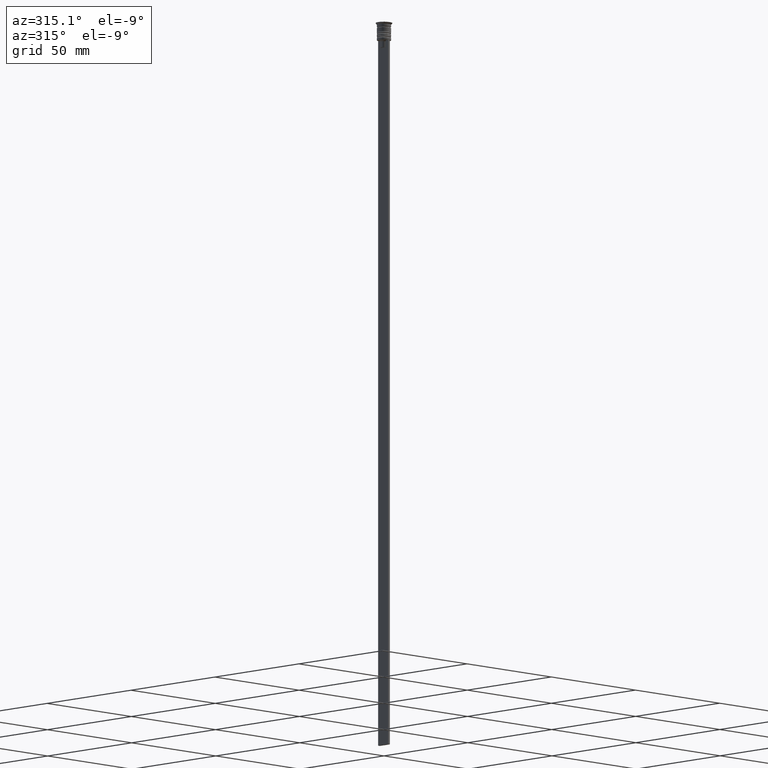
[diagram: clean part render]
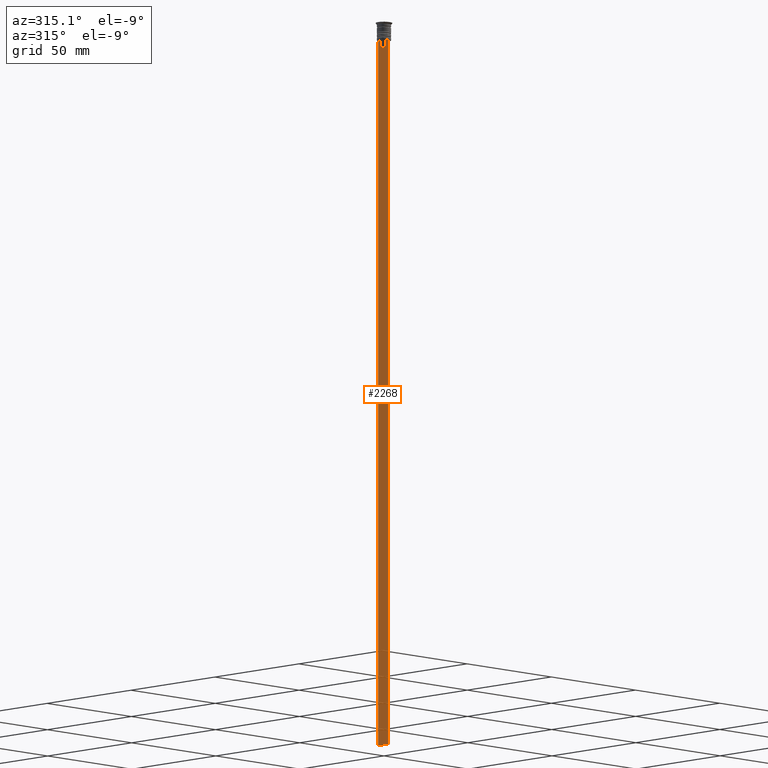
[diagram: same view with one face highlighted and labeled with its STEP entity id]
A machine part, auxiliary view. The second image highlights one B-rep face of the part: STEP entity #2268.
In plain terms, the highlighted planar face has unit normal (-1, 0, 0).
Its self-contained STEP definition (entity closure, byte-faithful):
#36 = EDGE_CURVE ( 'NONE', #466, #317, #1995, .T. ) ;
#69 = DIRECTION ( 'NONE',  ( -1.000000000000000000, 0.000000000000000000, 0.000000000000000000 ) ) ;
#77 = CARTESIAN_POINT ( 'NONE',  ( -0.5000000000000001110, -3.000000000000000000, -7.500000000000000000 ) ) ;
#86 = ORIENTED_EDGE ( 'NONE', *, *, #306, .F. ) ;
#113 = CARTESIAN_POINT ( 'NONE',  ( -0.5000000000000001110, -1.659011726860414093, -7.667884880598472286 ) ) ;
#118 = VERTEX_POINT ( 'NONE', #805 ) ;
#124 = CARTESIAN_POINT ( 'NONE',  ( -0.5000000000000001110, -3.000000000000000000, -1.417237469701779329 ) ) ;
#135 = LINE ( 'NONE', #1795, #1231 ) ;
#151 = DIRECTION ( 'NONE',  ( 0.000000000000000000, 0.000000000000000000, -1.000000000000000000 ) ) ;
#163 = CARTESIAN_POINT ( 'NONE',  ( -0.5000000000000001110, 1.399999999999997691, -10.49999999999999822 ) ) ;
#206 = B_SPLINE_CURVE_WITH_KNOTS ( 'NONE', 3,
 ( #796, #968, #1899, #837 ),
 .UNSPECIFIED., .F., .F.,
 ( 4, 4 ),
 ( 0.003278537493109840491, 0.004003794023484932504 ),
 .UNSPECIFIED. ) ;
#242 = ORIENTED_EDGE ( 'NONE', *, *, #1829, .T. ) ;
#288 = ORIENTED_EDGE ( 'NONE', *, *, #1115, .F. ) ;
#306 = EDGE_CURVE ( 'NONE', #118, #1927, #206, .T. ) ;
#310 = CARTESIAN_POINT ( 'NONE',  ( -0.5000000000000001110, 2.856571371417139904, -7.500000000000000000 ) ) ;
#317 = VERTEX_POINT ( 'NONE', #2234 ) ;
#321 = DIRECTION ( 'NONE',  ( 0.000000000000000000, -1.000000000000000000, 0.000000000000000000 ) ) ;
#341 = CARTESIAN_POINT ( 'NONE',  ( -0.5000000000000001110, 1.307669683062199217, -8.000000000000000000 ) ) ;
#343 = ORIENTED_EDGE ( 'NONE', *, *, #1346, .F. ) ;
#455 = CARTESIAN_POINT ( 'NONE',  ( -0.5000000000000001110, -1.307669683062199217, -8.000000000000000000 ) ) ;
#466 = VERTEX_POINT ( 'NONE', #455 ) ;
#521 = ORIENTED_EDGE ( 'NONE', *, *, #999, .F. ) ;
#566 = AXIS2_PLACEMENT_3D ( 'NONE', #1132, #69, #1847 ) ;
#597 = CARTESIAN_POINT ( 'NONE',  ( -0.5000000000000001110, -1.307669683062199217, -10.49999999999999822 ) ) ;
#612 = CARTESIAN_POINT ( 'NONE',  ( -0.5000000000000001110, -1.833030277982335532, -7.500000000000000000 ) ) ;
#613 = CARTESIAN_POINT ( 'NONE',  ( -0.5000000000000001110, -3.000000000000000000, -7.500000000000000000 ) ) ;
#618 = EDGE_CURVE ( 'NONE', #1350, #1094, #1742, .T. ) ;
#619 = ORIENTED_EDGE ( 'NONE', *, *, #1682, .F. ) ;
#621 = ORIENTED_EDGE ( 'NONE', *, *, #653, .F. ) ;
#653 = EDGE_CURVE ( 'NONE', #694, #466, #135, .T. ) ;
#680 = CARTESIAN_POINT ( 'NONE',  ( -0.5000000000000001110, -3.000000000000000000, -307.5000000000000000 ) ) ;
#694 = VERTEX_POINT ( 'NONE', #597 ) ;
#787 = LINE ( 'NONE', #77, #1948 ) ;
#796 = CARTESIAN_POINT ( 'NONE',  ( -0.5000000000000001110, 1.833030277982335532, -7.500000000000000000 ) ) ;
#805 = CARTESIAN_POINT ( 'NONE',  ( -0.5000000000000001110, 1.833030277982335532, -7.500000000000000000 ) ) ;
#837 = CARTESIAN_POINT ( 'NONE',  ( -0.5000000000000001110, 1.307669683062199217, -8.000000000000000000 ) ) ;
#846 = DIRECTION ( 'NONE',  ( -0.000000000000000000, -0.000000000000000000, 1.000000000000000000 ) ) ;
#968 = CARTESIAN_POINT ( 'NONE',  ( -0.5000000000000001110, 1.659046061654642523, -7.667851756010361619 ) ) ;
#999 = EDGE_CURVE ( 'NONE', #1094, #1281, #1969, .T. ) ;
#1020 = VERTEX_POINT ( 'NONE', #1772 ) ;
#1031 = ORIENTED_EDGE ( 'NONE', *, *, #36, .F. ) ;
#1035 = ORIENTED_EDGE ( 'NONE', *, *, #2073, .F. ) ;
#1049 = EDGE_CURVE ( 'NONE', #1927, #1051, #1423, .T. ) ;
#1051 = VERTEX_POINT ( 'NONE', #2150 ) ;
#1064 = DIRECTION ( 'NONE',  ( 0.000000000000000000, 1.000000000000000000, 0.000000000000000000 ) ) ;
#1076 = LINE ( 'NONE', #2013, #2320 ) ;
#1085 = VECTOR ( 'NONE', #1325, 1000.000000000000000 ) ;
#1094 = VERTEX_POINT ( 'NONE', #1411 ) ;
#1115 = EDGE_CURVE ( 'NONE', #1611, #1350, #1076, .T. ) ;
#1122 = VECTOR ( 'NONE', #1392, 1000.000000000000000 ) ;
#1132 = CARTESIAN_POINT ( 'NONE',  ( -0.5000000000000001110, -3.000000000000000000, -1.417237469701779329 ) ) ;
#1145 = LINE ( 'NONE', #613, #1085 ) ;
#1195 = LINE ( 'NONE', #1218, #1306 ) ;
#1204 = VECTOR ( 'NONE', #321, 1000.000000000000000 ) ;
#1218 = CARTESIAN_POINT ( 'NONE',  ( -0.5000000000000001110, 3.000000000000000000, -1.417237469701779329 ) ) ;
#1231 = VECTOR ( 'NONE', #846, 1000.000000000000000 ) ;
#1281 = VERTEX_POINT ( 'NONE', #1696 ) ;
#1306 = VECTOR ( 'NONE', #151, 1000.000000000000000 ) ;
#1325 = DIRECTION ( 'NONE',  ( 0.000000000000000000, -1.000000000000000000, 0.000000000000000000 ) ) ;
#1346 = EDGE_CURVE ( 'NONE', #317, #1611, #787, .T. ) ;
#1350 = VERTEX_POINT ( 'NONE', #1671 ) ;
#1392 = DIRECTION ( 'NONE',  ( 0.000000000000000000, 0.000000000000000000, -1.000000000000000000 ) ) ;
#1400 = CARTESIAN_POINT ( 'NONE',  ( -0.5000000000000001110, 1.307669683062199217, 0.000000000000000000 ) ) ;
#1411 = CARTESIAN_POINT ( 'NONE',  ( -0.5000000000000001110, -3.000000000000000000, -307.5000000000000000 ) ) ;
#1423 = LINE ( 'NONE', #1400, #1122 ) ;
#1469 = EDGE_CURVE ( 'NONE', #1051, #694, #2132, .T. ) ;
#1564 = VECTOR ( 'NONE', #2151, 1000.000000000000000 ) ;
#1608 = LINE ( 'NONE', #2155, #1765 ) ;
#1611 = VERTEX_POINT ( 'NONE', #1841 ) ;
#1654 = ORIENTED_EDGE ( 'NONE', *, *, #1469, .F. ) ;
#1671 = CARTESIAN_POINT ( 'NONE',  ( -0.5000000000000001110, -3.000000000000000000, -7.500000000000000000 ) ) ;
#1675 = ORIENTED_EDGE ( 'NONE', *, *, #1049, .F. ) ;
#1680 = CARTESIAN_POINT ( 'NONE',  ( -0.5000000000000001110, -1.484307477388859153, -7.835011508197190722 ) ) ;
#1682 = EDGE_CURVE ( 'NONE', #1020, #1882, #1145, .T. ) ;
#1696 = CARTESIAN_POINT ( 'NONE',  ( -0.5000000000000001110, 3.000000000000000000, -307.5000000000000000 ) ) ;
#1742 = LINE ( 'NONE', #124, #1564 ) ;
#1765 = VECTOR ( 'NONE', #1820, 1000.000000000000000 ) ;
#1772 = CARTESIAN_POINT ( 'NONE',  ( -0.5000000000000001110, 3.000000000000000000, -7.500000000000000000 ) ) ;
#1789 = EDGE_LOOP ( 'NONE', ( #86, #1035, #619, #242, #521, #2004, #288, #343, #1031, #621, #1654, #1675 ) ) ;
#1795 = CARTESIAN_POINT ( 'NONE',  ( -0.5000000000000001110, -1.307669683062199217, 0.000000000000000000 ) ) ;
#1807 = DIRECTION ( 'NONE',  ( 0.000000000000000000, -1.000000000000000000, 0.000000000000000000 ) ) ;
#1820 = DIRECTION ( 'NONE',  ( 0.000000000000000000, -1.000000000000000000, 0.000000000000000000 ) ) ;
#1829 = EDGE_CURVE ( 'NONE', #1020, #1281, #1195, .T. ) ;
#1841 = CARTESIAN_POINT ( 'NONE',  ( -0.5000000000000001110, -2.856571371417139904, -7.500000000000000000 ) ) ;
#1847 = DIRECTION ( 'NONE',  ( 0.000000000000000000, 0.000000000000000000, 1.000000000000000000 ) ) ;
#1882 = VERTEX_POINT ( 'NONE', #310 ) ;
#1899 = CARTESIAN_POINT ( 'NONE',  ( -0.5000000000000001110, 1.484355510416485391, -7.834966642958598015 ) ) ;
#1927 = VERTEX_POINT ( 'NONE', #341 ) ;
#1948 = VECTOR ( 'NONE', #2266, 1000.000000000000000 ) ;
#1969 = LINE ( 'NONE', #680, #2202 ) ;
#1995 = B_SPLINE_CURVE_WITH_KNOTS ( 'NONE', 3,
 ( #2059, #1680, #113, #612 ),
 .UNSPECIFIED., .F., .F.,
 ( 4, 4 ),
 ( 0.007225659348748070081, 0.007950554640278040958 ),
 .UNSPECIFIED. ) ;
#2004 = ORIENTED_EDGE ( 'NONE', *, *, #618, .F. ) ;
#2013 = CARTESIAN_POINT ( 'NONE',  ( -0.5000000000000001110, -3.000000000000000000, -7.500000000000000000 ) ) ;
#2019 = PLANE ( 'NONE',  #566 ) ;
#2030 = FACE_OUTER_BOUND ( 'NONE', #1789, .T. ) ;
#2059 = CARTESIAN_POINT ( 'NONE',  ( -0.5000000000000001110, -1.307669683062199217, -8.000000000000000000 ) ) ;
#2073 = EDGE_CURVE ( 'NONE', #1882, #118, #1608, .T. ) ;
#2132 = LINE ( 'NONE', #163, #1204 ) ;
#2150 = CARTESIAN_POINT ( 'NONE',  ( -0.5000000000000001110, 1.307669683062199217, -10.49999999999999822 ) ) ;
#2151 = DIRECTION ( 'NONE',  ( 0.000000000000000000, 0.000000000000000000, -1.000000000000000000 ) ) ;
#2155 = CARTESIAN_POINT ( 'NONE',  ( -0.5000000000000001110, -3.000000000000000000, -7.500000000000000000 ) ) ;
#2202 = VECTOR ( 'NONE', #1064, 1000.000000000000000 ) ;
#2234 = CARTESIAN_POINT ( 'NONE',  ( -0.5000000000000001110, -1.833030277982335532, -7.500000000000000000 ) ) ;
#2266 = DIRECTION ( 'NONE',  ( 0.000000000000000000, -1.000000000000000000, 0.000000000000000000 ) ) ;
#2268 = ADVANCED_FACE ( 'NONE', ( #2030 ), #2019, .T. ) ;
#2320 = VECTOR ( 'NONE', #1807, 1000.000000000000000 ) ;